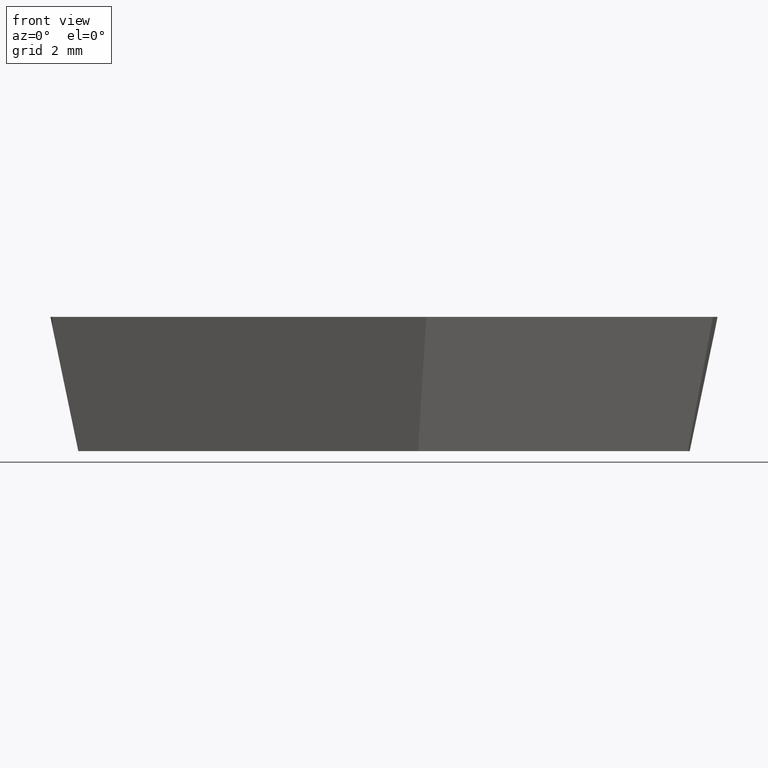
[diagram: clean part render]
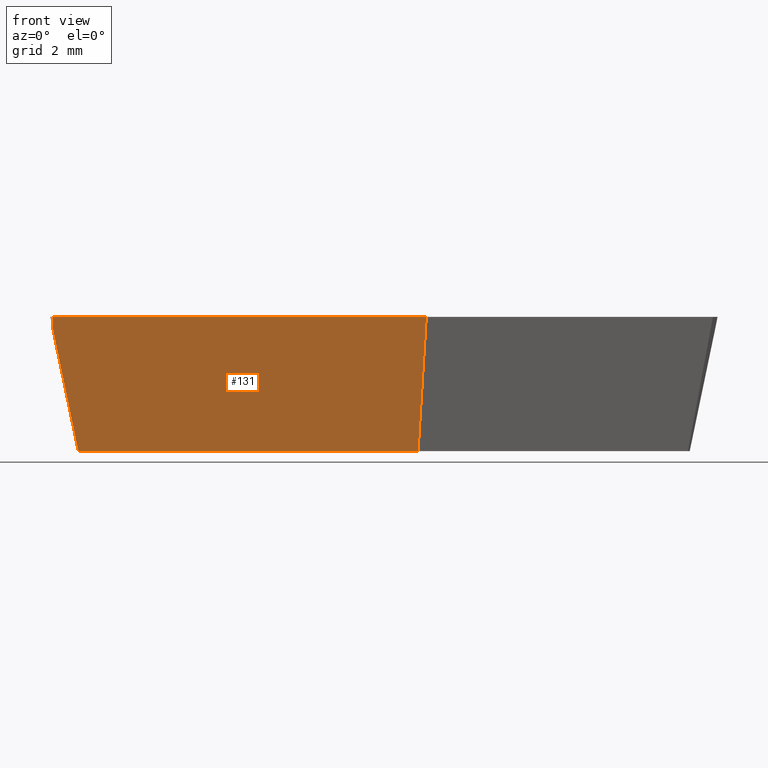
[diagram: same view with one face highlighted and labeled with its STEP entity id]
A machine part, front view. The second image highlights one B-rep face of the part: STEP entity #131.
In plain terms, the highlighted planar face has unit normal (0, -0.9816, -0.1908).
Its self-contained STEP definition (entity closure, byte-faithful):
#1 = VECTOR ( 'NONE', #431, 1000.000000000000000 ) ;
#2 = CARTESIAN_POINT ( 'NONE',  ( 1.001073654690762600, -3.174999999999999800, 0.0000000000000000000 ) ) ;
#8 = EDGE_CURVE ( 'NONE', #411, #99, #184, .T. ) ;
#9 = CARTESIAN_POINT ( 'NONE',  ( -7.237137390861799500, -2.556870616942054300, -3.180000000000000200 ) ) ;
#27 = VECTOR ( 'NONE', #379, 1000.000000000000100 ) ;
#44 = LINE ( 'NONE', #437, #27 ) ;
#64 = FACE_OUTER_BOUND ( 'NONE', #277, .T. ) ;
#94 = VECTOR ( 'NONE', #190, 1000.000000000000100 ) ;
#99 = VERTEX_POINT ( 'NONE', #142 ) ;
#113 = CARTESIAN_POINT ( 'NONE',  ( -7.900000000000002100, -3.175000000000000700, 0.0000000000000000000 ) ) ;
#123 = CARTESIAN_POINT ( 'NONE',  ( 1.001073654690762600, -2.556870616942053400, -3.180000000000000200 ) ) ;
#131 = ADVANCED_FACE ( 'NONE', ( #64 ), #245, .T. ) ;
#142 = CARTESIAN_POINT ( 'NONE',  ( 1.001073654690762600, -3.174999999999999800, 0.0000000000000000000 ) ) ;
#148 = DIRECTION ( 'NONE',  ( 1.000000000000000000, 9.744461978823350000E-017, 0.0000000000000000000 ) ) ;
#165 = ORIENTED_EDGE ( 'NONE', *, *, #8, .F. ) ;
#175 = CARTESIAN_POINT ( 'NONE',  ( -7.846381564498766900, -3.125000000000000400, -0.2572277007985163700 ) ) ;
#176 = CARTESIAN_POINT ( 'NONE',  ( -7.846381564498768700, -3.175000000000000700, 0.0000000000000000000 ) ) ;
#184 = LINE ( 'NONE', #2, #1 ) ;
#190 = DIRECTION ( 'NONE',  ( -0.2004640746510998900, -0.1869357738407769500, 0.9617011860410842300 ) ) ;
#195 = CARTESIAN_POINT ( 'NONE',  ( -7.846381564498768700, -3.175000000000000700, 1.921625099205375900E-018 ) ) ;
#215 = EDGE_CURVE ( 'NONE', #365, #99, #44, .T. ) ;
#219 = VERTEX_POINT ( 'NONE', #9 ) ;
#234 = CARTESIAN_POINT ( 'NONE',  ( 1.001073654690762600, -3.174999999999999800, 0.0000000000000000000 ) ) ;
#245 = PLANE ( 'NONE',  #349 ) ;
#252 = DIRECTION ( 'NONE',  ( 9.565428766485213700E-017, -0.9816271834476639800, -0.1908089953765452800 ) ) ;
#265 = DIRECTION ( 'NONE',  ( -1.859331000664225100E-017, 0.1908089953765452500, -0.9816271834476638600 ) ) ;
#272 = ORIENTED_EDGE ( 'NONE', *, *, #380, .T. ) ;
#277 = EDGE_LOOP ( 'NONE', ( #165, #272, #284, #286, #287 ) ) ;
#280 = VECTOR ( 'NONE', #148, 1000.000000000000000 ) ;
#282 = CARTESIAN_POINT ( 'NONE',  ( 0.8061782088420801400, -2.556870616942053400, -3.180000000000000200 ) ) ;
#284 = ORIENTED_EDGE ( 'NONE', *, *, #332, .F. ) ;
#286 = ORIENTED_EDGE ( 'NONE', *, *, #414, .T. ) ;
#287 = ORIENTED_EDGE ( 'NONE', *, *, #215, .T. ) ;
#307 = LINE ( 'NONE', #113, #94 ) ;
#318 = VERTEX_POINT ( 'NONE', #175 ) ;
#328 = LINE ( 'NONE', #123, #280 ) ;
#332 = EDGE_CURVE ( 'NONE', #219, #318, #307, .T. ) ;
#349 = AXIS2_PLACEMENT_3D ( 'NONE', #234, #252, #370 ) ;
#365 = VERTEX_POINT ( 'NONE', #282 ) ;
#370 = DIRECTION ( 'NONE',  ( 0.0000000000000000000, 0.1908089953765452800, -0.9816271834476639800 ) ) ;
#379 = DIRECTION ( 'NONE',  ( 0.06005326349153969300, -0.1904646183547176200, 0.9798555172570124800 ) ) ;
#380 = EDGE_CURVE ( 'NONE', #411, #318, #448, .T. ) ;
#408 = VECTOR ( 'NONE', #265, 1000.000000000000100 ) ;
#411 = VERTEX_POINT ( 'NONE', #176 ) ;
#414 = EDGE_CURVE ( 'NONE', #219, #365, #328, .T. ) ;
#431 = DIRECTION ( 'NONE',  ( 1.000000000000000000, 9.744461978823348800E-017, -0.0000000000000000000 ) ) ;
#437 = CARTESIAN_POINT ( 'NONE',  ( 1.001073654690761700, -3.174999999999999800, 4.532429341667184100E-017 ) ) ;
#448 = LINE ( 'NONE', #195, #408 ) ;